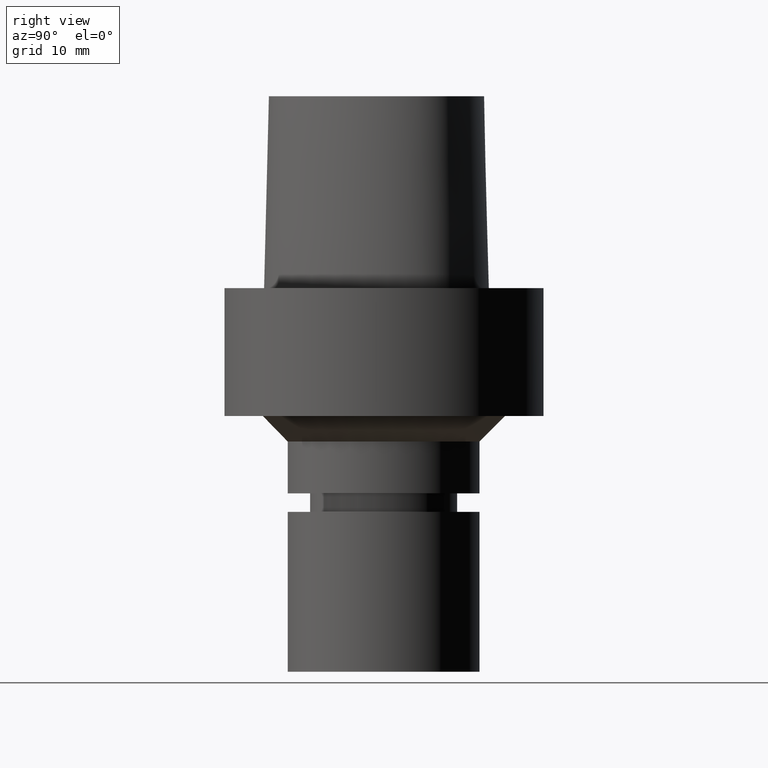
[diagram: clean part render]
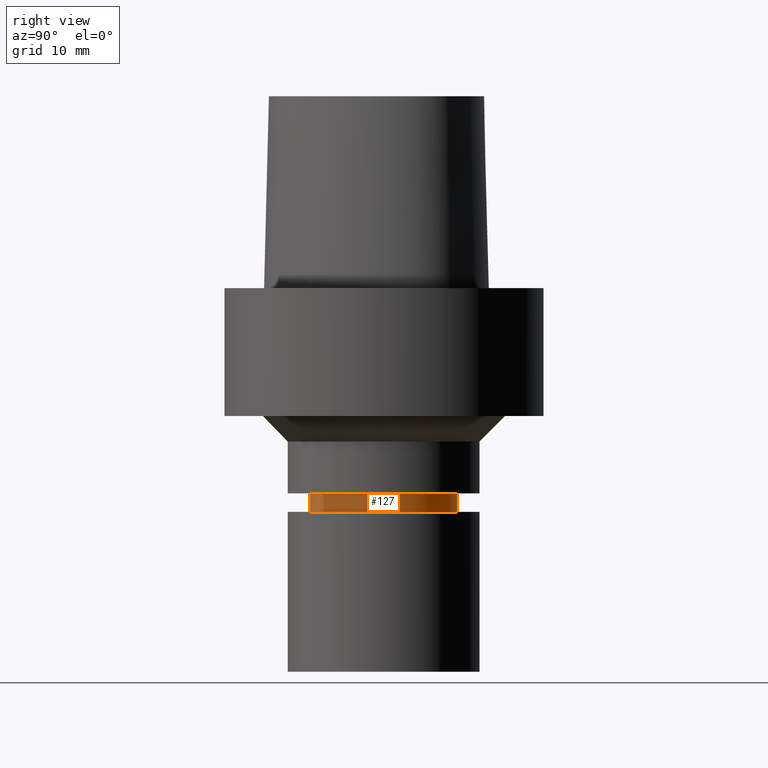
[diagram: same view with one face highlighted and labeled with its STEP entity id]
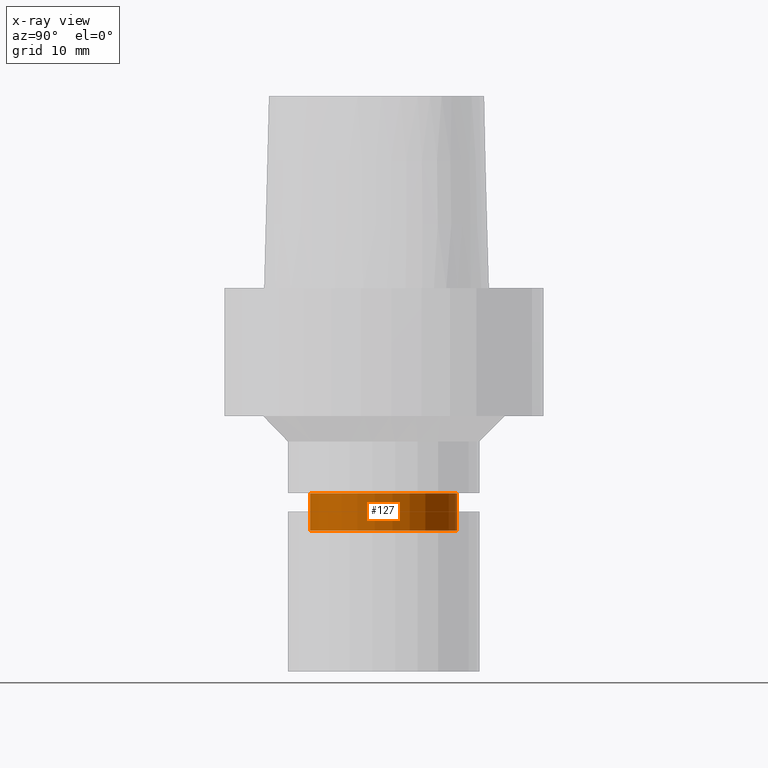
[diagram: x-ray of the same camera — body ghosted, the highlighted face saturated]
A machine part, right view. The second image highlights one B-rep face of the part: STEP entity #127.
The next image is the same camera in x-ray: the body ghosted, the highlighted face saturated — about 0% of this face is hidden behind the body in this view.
In plain terms, the highlighted cylindrical surface (bore or boss wall) has radius 11.5 mm, axis along (0, 0, -1).
Its self-contained STEP definition (entity closure, byte-faithful):
#72=EDGE_CURVE('Unnamed[1]',#178,#178,#179,.T.);
#127=ADVANCED_FACE('Unnamed[1]',(#257,#258),#259,.T.);
#145=EDGE_CURVE('Unnamed[1]',#286,#286,#287,.T.);
#178=VERTEX_POINT('',#318);
#179=CIRCLE('',#319,11.5000000000021);
#257=FACE_BOUND('',#901,.T.);
#258=FACE_BOUND('',#902,.T.);
#259=CYLINDRICAL_SURFACE('',#903,11.4999999999964);
#286=VERTEX_POINT('',#937);
#287=CIRCLE('',#938,11.4999999999907);
#318=CARTESIAN_POINT('',(2.32139913239222E-015,11.5000000000021,-37.9113248653974));
#319=AXIS2_PLACEMENT_3D('',#955,#956,#957);
#901=EDGE_LOOP('',(#1032));
#902=EDGE_LOOP('',(#1033));
#903=AXIS2_PLACEMENT_3D('',#1034,#1035,#1036);
#937=CARTESIAN_POINT('',(1.96555811263151E-015,11.4999999999907,-32.1000000000001));
#938=AXIS2_PLACEMENT_3D('',#1066,#1067,#1068);
#955=CARTESIAN_POINT('',(2.32139913239222E-015,4.64279826478443E-015,-37.9113248653974));
#956=DIRECTION('',(6.12323399573677E-017,1.22464679914735E-016,-1.0));
#957=DIRECTION('',(-1.23259516440783E-032,1.0,1.22464679914735E-016));
#1032=ORIENTED_EDGE('',*,*,#72,.F.);
#1033=ORIENTED_EDGE('',*,*,#145,.T.);
#1034=CARTESIAN_POINT('',(2.14347862251186E-015,4.28695724502372E-015,-35.0056624326987));
#1035=DIRECTION('',(6.12323399573677E-017,1.22464679914735E-016,-1.0));
#1036=DIRECTION('',(-1.23259516440783E-032,1.0,1.22464679914735E-016));
#1066=CARTESIAN_POINT('',(1.96555811263151E-015,3.93111622526301E-015,-32.1000000000001));
#1067=DIRECTION('',(6.12323399573677E-017,1.22464679914735E-016,-1.0));
#1068=DIRECTION('',(-1.23259516440783E-032,1.0,1.22464679914735E-016));